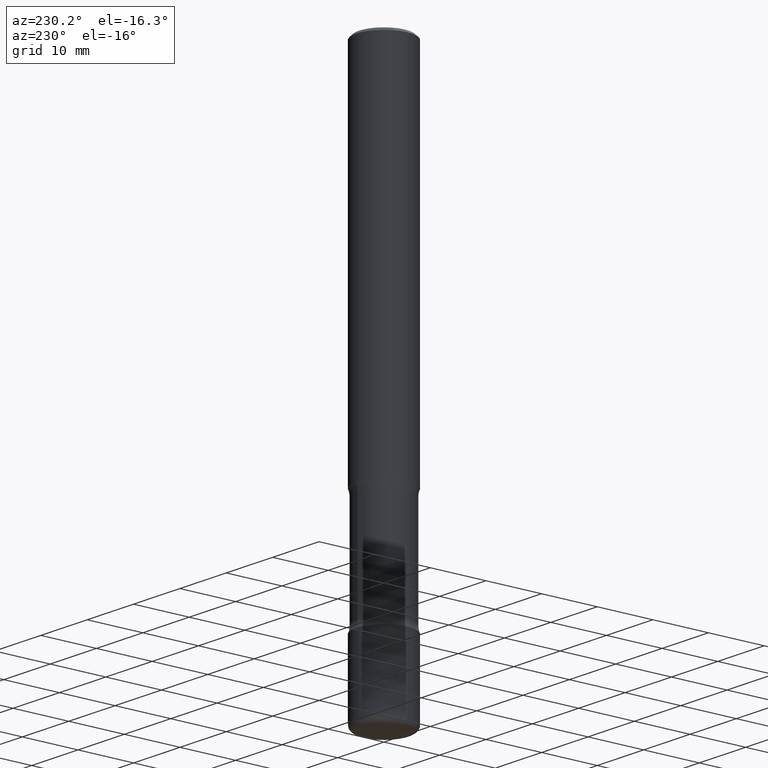
[diagram: clean part render]
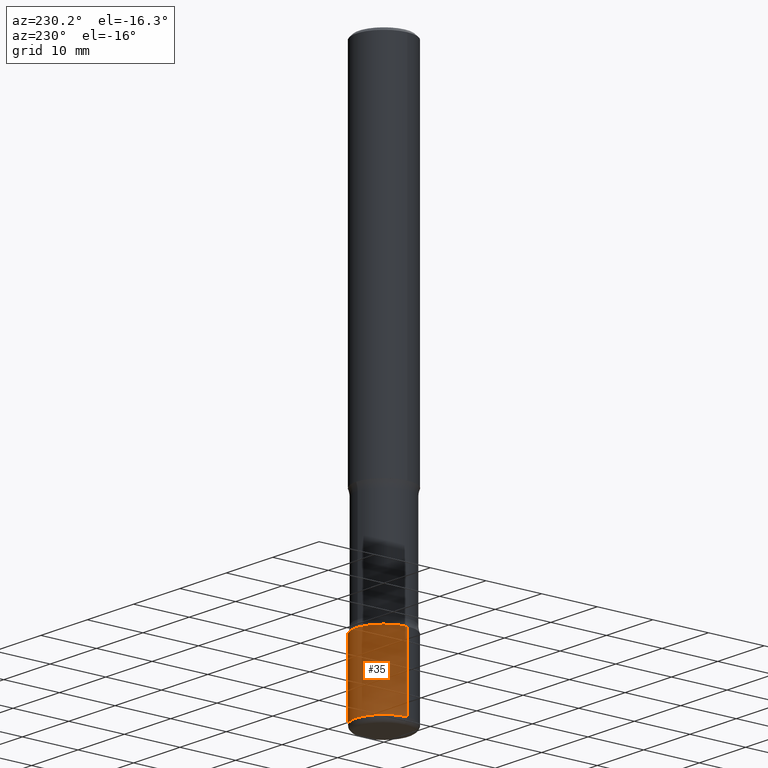
[diagram: same view with one face highlighted and labeled with its STEP entity id]
A machine part, auxiliary view. The second image highlights one B-rep face of the part: STEP entity #35.
In plain terms, the highlighted cylindrical surface (edge-blend (fillet) strip) has radius 5 mm, axis along (-0, 0, 1).
Its self-contained STEP definition (entity closure, byte-faithful):
#14 = VECTOR ( 'NONE', #139, 39.37007874015748143 ) ;
#16 = DIRECTION ( 'NONE',  ( 1.000000000000000000, -6.982962677686265133E-15, 0.000000000000000000 ) ) ;
#32 = LINE ( 'NONE', #343, #14 ) ;
#33 = CARTESIAN_POINT ( 'NONE',  ( 0.000000000000000000, 0.000000000000000000, 0.000000000000000000 ) ) ;
#35 = ADVANCED_FACE ( 'NONE', ( #73 ), #521, .T. ) ;
#58 = DIRECTION ( 'NONE',  ( -2.445468806185136597E-29, 3.491481338843145583E-15, 1.000000000000000000 ) ) ;
#67 = EDGE_LOOP ( 'NONE', ( #86, #259, #81, #439 ) ) ;
#73 = FACE_OUTER_BOUND ( 'NONE', #67, .T. ) ;
#74 = LINE ( 'NONE', #489, #273 ) ;
#81 = ORIENTED_EDGE ( 'NONE', *, *, #287, .F. ) ;
#86 = ORIENTED_EDGE ( 'NONE', *, *, #177, .T. ) ;
#89 = CARTESIAN_POINT ( 'NONE',  ( -0.1968500000000001082, -1.131622421632132460E-14, -3.385799999999999699 ) ) ;
#91 = EDGE_CURVE ( 'NONE', #385, #494, #32, .T. ) ;
#135 = VERTEX_POINT ( 'NONE', #169 ) ;
#139 = DIRECTION ( 'NONE',  ( -2.445468806185136877E-29, 3.491481338843145188E-15, 1.000000000000000000 ) ) ;
#150 = DIRECTION ( 'NONE',  ( 1.000000000000000000, -6.982962677686263555E-15, 0.000000000000000000 ) ) ;
#163 = CARTESIAN_POINT ( 'NONE',  ( 8.279868283981634472E-29, -1.182145751705512057E-14, -3.385799999999999699 ) ) ;
#169 = CARTESIAN_POINT ( 'NONE',  ( 0.1968500000000001082, -1.319605372015766376E-14, -3.385799999999999699 ) ) ;
#177 = EDGE_CURVE ( 'NONE', #293, #385, #309, .T. ) ;
#196 = DIRECTION ( 'NONE',  ( 1.000000000000000000, -6.982962677686266711E-15, 4.876176775795935793E-29 ) ) ;
#231 = DIRECTION ( 'NONE',  ( -2.445468806185136597E-29, 3.491481338843145583E-15, 1.000000000000000000 ) ) ;
#245 = CIRCLE ( 'NONE', #432, 0.1968500000000001082 ) ;
#259 = ORIENTED_EDGE ( 'NONE', *, *, #91, .T. ) ;
#273 = VECTOR ( 'NONE', #414, 39.37007874015748143 ) ;
#287 = EDGE_CURVE ( 'NONE', #135, #494, #245, .T. ) ;
#293 = VERTEX_POINT ( 'NONE', #450 ) ;
#307 = CARTESIAN_POINT ( 'NONE',  ( 9.531459218987189074E-29, -1.360839766627504420E-14, -3.897600000000000176 ) ) ;
#309 = CIRCLE ( 'NONE', #390, 0.1968500000000001360 ) ;
#343 = CARTESIAN_POINT ( 'NONE',  ( -0.1968500000000001082, 1.398703375343757985E-15, -9.682923725166787881E-30 ) ) ;
#354 = AXIS2_PLACEMENT_3D ( 'NONE', #33, #547, #196 ) ;
#367 = CARTESIAN_POINT ( 'NONE',  ( -0.1968500000000000527, -1.220969429093128562E-14, -3.897600000000000176 ) ) ;
#385 = VERTEX_POINT ( 'NONE', #367 ) ;
#390 = AXIS2_PLACEMENT_3D ( 'NONE', #307, #58, #150 ) ;
#413 = EDGE_CURVE ( 'NONE', #293, #135, #74, .T. ) ;
#414 = DIRECTION ( 'NONE',  ( -2.445468806185136877E-29, 3.491481338843145188E-15, 1.000000000000000000 ) ) ;
#432 = AXIS2_PLACEMENT_3D ( 'NONE', #163, #231, #16 ) ;
#439 = ORIENTED_EDGE ( 'NONE', *, *, #413, .F. ) ;
#450 = CARTESIAN_POINT ( 'NONE',  ( 0.1968500000000000527, -1.498299386937758423E-14, -3.897600000000000176 ) ) ;
#489 = CARTESIAN_POINT ( 'NONE',  ( 0.1968500000000001082, -1.374596203102542397E-15, 9.598753983154305062E-30 ) ) ;
#494 = VERTEX_POINT ( 'NONE', #89 ) ;
#521 = CYLINDRICAL_SURFACE ( 'NONE', #354, 0.1968500000000001082 ) ;
#547 = DIRECTION ( 'NONE',  ( -2.445468806185136597E-29, 3.491481338843145583E-15, 1.000000000000000000 ) ) ;